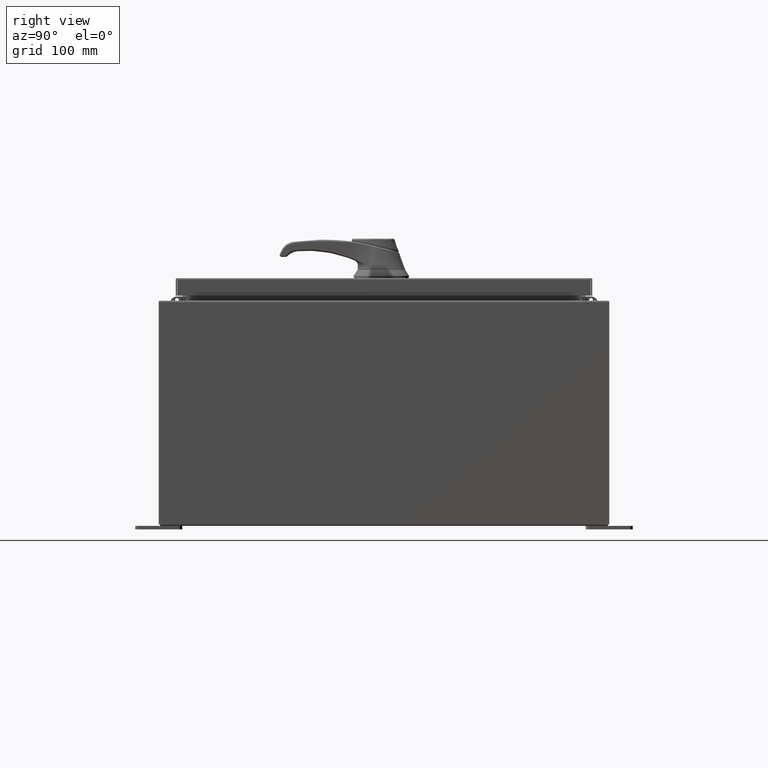
[diagram: clean part render]
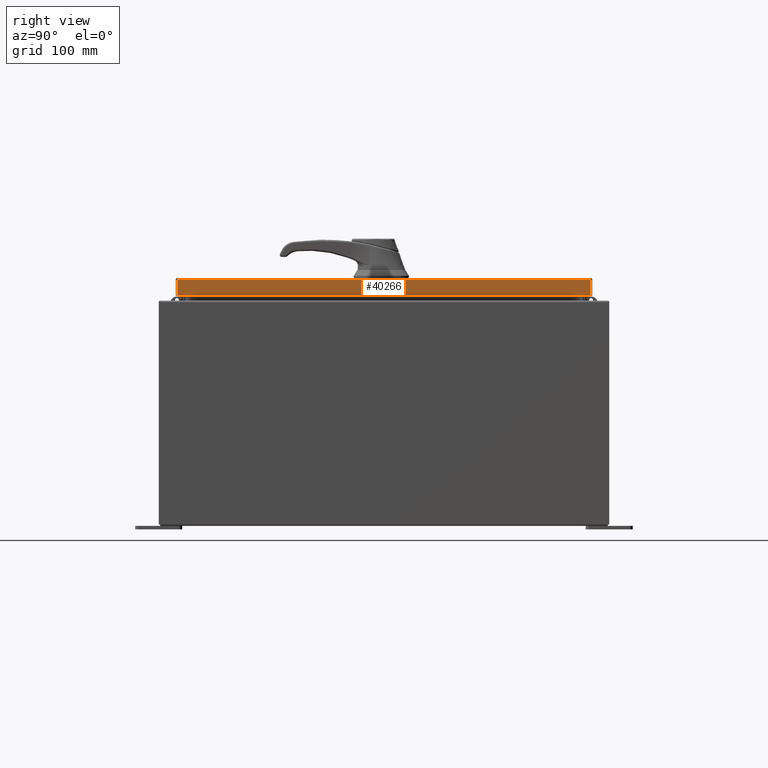
[diagram: same view with one face highlighted and labeled with its STEP entity id]
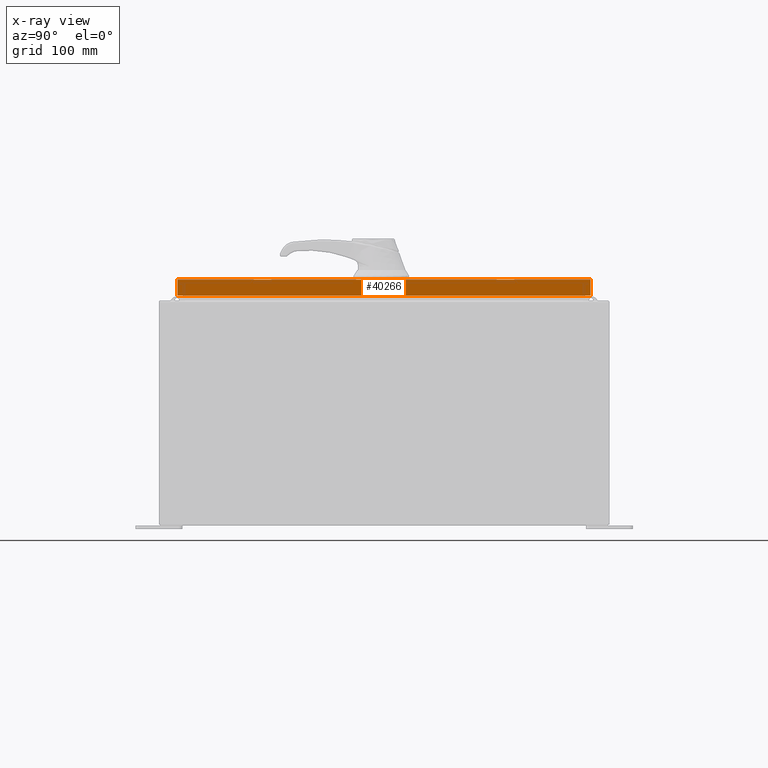
[diagram: x-ray of the same camera — body ghosted, the highlighted face saturated]
A machine part, right view. The second image highlights one B-rep face of the part: STEP entity #40266.
The next image is the same camera in x-ray: the body ghosted, the highlighted face saturated — about 0% of this face is hidden behind the body in this view.
In plain terms, the highlighted planar face has unit normal (1, 0, 0).
Its self-contained STEP definition (entity closure, byte-faithful):
#1990 = CARTESIAN_POINT ( 'NONE',  ( 11.07799999999999800, 11.00515786437627200, -0.9376999999999997600 ) ) ;
#3398 = LINE ( 'NONE', #56794, #67173 ) ;
#3897 = ORIENTED_EDGE ( 'NONE', *, *, #106455, .T. ) ;
#5257 = LINE ( 'NONE', #91805, #109623 ) ;
#6800 = CARTESIAN_POINT ( 'NONE',  ( 11.07799999999999600, 0.0000000000000000000, 2.831496158075104400E-014 ) ) ;
#13317 = AXIS2_PLACEMENT_3D ( 'NONE', #6800, #67486, #15504 ) ;
#13845 = VERTEX_POINT ( 'NONE', #82109 ) ;
#15504 = DIRECTION ( 'NONE',  ( 2.532419924601866100E-015, 0.0000000000000000000, -1.000000000000000000 ) ) ;
#16298 = EDGE_LOOP ( 'NONE', ( #37063, #17659, #57857, #3897 ) ) ;
#17659 = ORIENTED_EDGE ( 'NONE', *, *, #66266, .F. ) ;
#27548 = CARTESIAN_POINT ( 'NONE',  ( 11.07799999999999600, 11.00515786437626700, 1.051635682097360300E-013 ) ) ;
#37016 = CARTESIAN_POINT ( 'NONE',  ( 11.07799999999999800, -11.00515786437626200, -0.9376999999999997600 ) ) ;
#37025 = CARTESIAN_POINT ( 'NONE',  ( 11.07799999999999600, 11.00515786437626900, -0.08770000000000008300 ) ) ;
#37063 = ORIENTED_EDGE ( 'NONE', *, *, #73487, .F. ) ;
#40266 = ADVANCED_FACE ( 'NONE', ( #62077 ), #101905, .T. ) ;
#40513 = CARTESIAN_POINT ( 'NONE',  ( 11.07799999999999600, 0.0000000000000000000, -0.08770000000000008300 ) ) ;
#46575 = LINE ( 'NONE', #40513, #89933 ) ;
#49210 = DIRECTION ( 'NONE',  ( 0.0000000000000000000, -1.000000000000000000, 0.0000000000000000000 ) ) ;
#56669 = LINE ( 'NONE', #27548, #99980 ) ;
#56794 = CARTESIAN_POINT ( 'NONE',  ( 11.07799999999999800, -11.09400000000000100, -0.9376999999999997600 ) ) ;
#57857 = ORIENTED_EDGE ( 'NONE', *, *, #93638, .T. ) ;
#62077 = FACE_OUTER_BOUND ( 'NONE', #16298, .T. ) ;
#65527 = DIRECTION ( 'NONE',  ( 0.0000000000000000000, -1.000000000000000000, 0.0000000000000000000 ) ) ;
#66266 = EDGE_CURVE ( 'NONE', #88202, #78556, #3398, .T. ) ;
#67173 = VECTOR ( 'NONE', #65527, 39.37007874015748100 ) ;
#67486 = DIRECTION ( 'NONE',  ( 1.000000000000000000, 0.0000000000000000000, 2.532419924601866100E-015 ) ) ;
#73487 = EDGE_CURVE ( 'NONE', #78556, #13845, #5257, .T. ) ;
#78556 = VERTEX_POINT ( 'NONE', #37016 ) ;
#82109 = CARTESIAN_POINT ( 'NONE',  ( 11.07799999999999600, -11.00515786437626900, -0.08770000000000008300 ) ) ;
#83146 = DIRECTION ( 'NONE',  ( -2.532419924601866100E-015, -6.982962677686267500E-015, 1.000000000000000000 ) ) ;
#88202 = VERTEX_POINT ( 'NONE', #1990 ) ;
#89307 = VERTEX_POINT ( 'NONE', #37025 ) ;
#89933 = VECTOR ( 'NONE', #49210, 39.37007874015748100 ) ;
#91805 = CARTESIAN_POINT ( 'NONE',  ( 11.07799999999999600, -11.00515786437626900, -0.07469999999999980800 ) ) ;
#93638 = EDGE_CURVE ( 'NONE', #88202, #89307, #56669, .T. ) ;
#96815 = DIRECTION ( 'NONE',  ( -2.532419924601866100E-015, -6.982962677686267500E-015, 1.000000000000000000 ) ) ;
#99980 = VECTOR ( 'NONE', #96815, 39.37007874015748100 ) ;
#101905 = PLANE ( 'NONE',  #13317 ) ;
#106455 = EDGE_CURVE ( 'NONE', #89307, #13845, #46575, .T. ) ;
#109623 = VECTOR ( 'NONE', #83146, 39.37007874015748100 ) ;